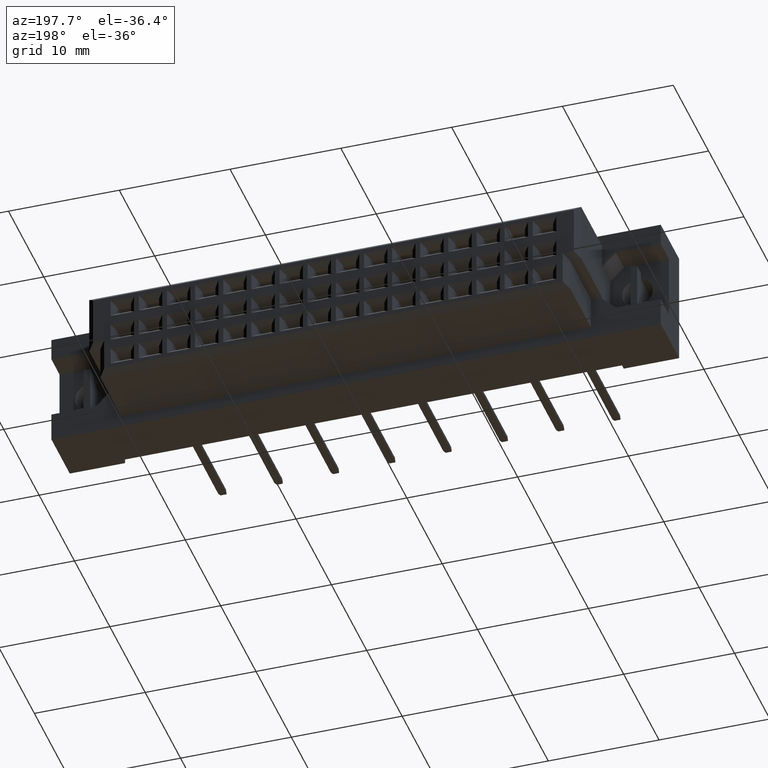
[diagram: clean part render]
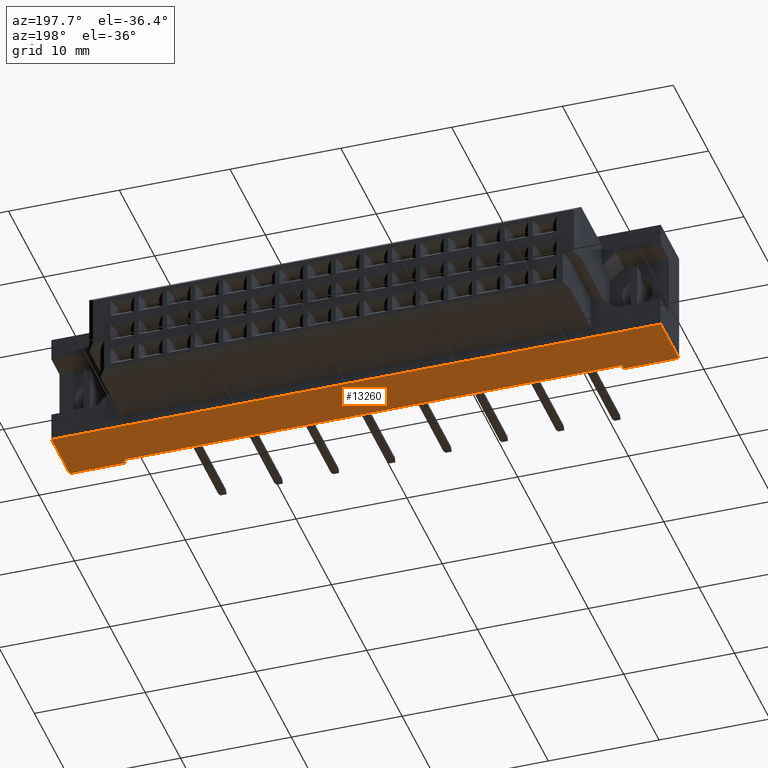
[diagram: same view with one face highlighted and labeled with its STEP entity id]
A machine part, auxiliary view. The second image highlights one B-rep face of the part: STEP entity #13260.
In plain terms, the highlighted planar face has unit normal (0, 0, -1).
Its self-contained STEP definition (entity closure, byte-faithful):
#394 = VECTOR ( 'NONE', #17163, 1000.000000000000000 ) ;
#1251 = DIRECTION ( 'NONE',  ( 0.0000000000000000000, 1.000000000000000000, 0.0000000000000000000 ) ) ;
#2326 = CARTESIAN_POINT ( 'NONE',  ( 27.49999999999999645, -6.400000000000001243, -5.299999999999999822 ) ) ;
#3092 = CARTESIAN_POINT ( 'NONE',  ( -22.50000000000001421, -11.09999999999999787, -5.300000000000000711 ) ) ;
#3165 = ORIENTED_EDGE ( 'NONE', *, *, #6632, .F. ) ;
#3377 = EDGE_LOOP ( 'NONE', ( #19708, #10181, #16246, #4997, #9344, #15163, #3165, #20218 ) ) ;
#3911 = EDGE_CURVE ( 'NONE', #18503, #15254, #20028, .T. ) ;
#4695 = LINE ( 'NONE', #20403, #15784 ) ;
#4967 = VERTEX_POINT ( 'NONE', #3092 ) ;
#4977 = VERTEX_POINT ( 'NONE', #17841 ) ;
#4997 = ORIENTED_EDGE ( 'NONE', *, *, #17103, .T. ) ;
#5142 = DIRECTION ( 'NONE',  ( -0.0000000000000000000, -1.000000000000000000, -6.123031769111886291E-17 ) ) ;
#5208 = EDGE_CURVE ( 'NONE', #4977, #7945, #6290, .T. ) ;
#5267 = CARTESIAN_POINT ( 'NONE',  ( -27.50000000000000355, -11.59999999999999964, -5.299999999999999822 ) ) ;
#5876 = AXIS2_PLACEMENT_3D ( 'NONE', #12530, #15371, #20184 ) ;
#6202 = DIRECTION ( 'NONE',  ( 1.000000000000000000, -0.0000000000000000000, -0.0000000000000000000 ) ) ;
#6290 = LINE ( 'NONE', #18871, #8194 ) ;
#6632 = EDGE_CURVE ( 'NONE', #4977, #18503, #16950, .T. ) ;
#7715 = CARTESIAN_POINT ( 'NONE',  ( -22.50000000000001421, -11.09999999999999787, -5.300000000000000711 ) ) ;
#7945 = VERTEX_POINT ( 'NONE', #12843 ) ;
#8194 = VECTOR ( 'NONE', #12375, 1000.000000000000000 ) ;
#8826 = DIRECTION ( 'NONE',  ( -1.000000000000000000, 0.0000000000000000000, 0.0000000000000000000 ) ) ;
#8976 = PLANE ( 'NONE',  #5876 ) ;
#9344 = ORIENTED_EDGE ( 'NONE', *, *, #18015, .T. ) ;
#9442 = LINE ( 'NONE', #19493, #11212 ) ;
#10181 = ORIENTED_EDGE ( 'NONE', *, *, #15506, .F. ) ;
#10719 = CARTESIAN_POINT ( 'NONE',  ( 22.50000000000001421, -11.09999999999999787, -5.300000000000000711 ) ) ;
#11212 = VECTOR ( 'NONE', #16043, 1000.000000000000000 ) ;
#11456 = VERTEX_POINT ( 'NONE', #15192 ) ;
#11574 = CARTESIAN_POINT ( 'NONE',  ( -27.50000000000000355, -6.400000000000001243, -5.299999999999999822 ) ) ;
#12075 = VECTOR ( 'NONE', #20290, 1000.000000000000000 ) ;
#12375 = DIRECTION ( 'NONE',  ( -1.000000000000000000, -0.0000000000000000000, -0.0000000000000000000 ) ) ;
#12509 = VECTOR ( 'NONE', #6202, 1000.000000000000000 ) ;
#12514 = EDGE_CURVE ( 'NONE', #18017, #7945, #19286, .T. ) ;
#12530 = CARTESIAN_POINT ( 'NONE',  ( -27.50000000000000355, -11.59999999999999964, -5.299999999999999822 ) ) ;
#12557 = VECTOR ( 'NONE', #5142, 1000.000000000000000 ) ;
#12725 = CARTESIAN_POINT ( 'NONE',  ( 27.49999999999999645, -6.400000000000001243, -5.299999999999999822 ) ) ;
#12843 = CARTESIAN_POINT ( 'NONE',  ( 22.50000000000001421, -11.59999999999999964, -5.300000000000000711 ) ) ;
#13260 = ADVANCED_FACE ( 'NONE', ( #20487 ), #8976, .T. ) ;
#13904 = CARTESIAN_POINT ( 'NONE',  ( 27.49999999999999645, -11.59999999999999964, -5.299999999999999822 ) ) ;
#14566 = EDGE_CURVE ( 'NONE', #4967, #11456, #18728, .T. ) ;
#15163 = ORIENTED_EDGE ( 'NONE', *, *, #3911, .F. ) ;
#15192 = CARTESIAN_POINT ( 'NONE',  ( -22.50000000000001421, -11.59999999999999964, -5.300000000000000711 ) ) ;
#15254 = VERTEX_POINT ( 'NONE', #11574 ) ;
#15371 = DIRECTION ( 'NONE',  ( 0.0000000000000000000, 0.0000000000000000000, -1.000000000000000000 ) ) ;
#15506 = EDGE_CURVE ( 'NONE', #4967, #18017, #15651, .T. ) ;
#15607 = CARTESIAN_POINT ( 'NONE',  ( 22.50000000000001421, -11.09999999999999787, -5.300000000000000711 ) ) ;
#15651 = LINE ( 'NONE', #10719, #12509 ) ;
#15784 = VECTOR ( 'NONE', #1251, 1000.000000000000000 ) ;
#15813 = VERTEX_POINT ( 'NONE', #5267 ) ;
#15939 = CARTESIAN_POINT ( 'NONE',  ( 22.50000000000001421, -11.09999999999999787, -5.300000000000000711 ) ) ;
#16043 = DIRECTION ( 'NONE',  ( -1.000000000000000000, -0.0000000000000000000, -0.0000000000000000000 ) ) ;
#16246 = ORIENTED_EDGE ( 'NONE', *, *, #14566, .T. ) ;
#16950 = LINE ( 'NONE', #13904, #12075 ) ;
#17103 = EDGE_CURVE ( 'NONE', #11456, #15813, #9442, .T. ) ;
#17163 = DIRECTION ( 'NONE',  ( -0.0000000000000000000, -1.000000000000000000, -6.123031769111886291E-17 ) ) ;
#17841 = CARTESIAN_POINT ( 'NONE',  ( 27.49999999999999645, -11.59999999999999964, -5.299999999999999822 ) ) ;
#18015 = EDGE_CURVE ( 'NONE', #15813, #15254, #4695, .T. ) ;
#18017 = VERTEX_POINT ( 'NONE', #15607 ) ;
#18503 = VERTEX_POINT ( 'NONE', #12725 ) ;
#18691 = VECTOR ( 'NONE', #8826, 1000.000000000000000 ) ;
#18728 = LINE ( 'NONE', #7715, #394 ) ;
#18871 = CARTESIAN_POINT ( 'NONE',  ( -27.50000000000000355, -11.59999999999999964, -5.299999999999999822 ) ) ;
#19286 = LINE ( 'NONE', #15939, #12557 ) ;
#19493 = CARTESIAN_POINT ( 'NONE',  ( -27.50000000000000355, -11.59999999999999964, -5.299999999999999822 ) ) ;
#19708 = ORIENTED_EDGE ( 'NONE', *, *, #12514, .F. ) ;
#20028 = LINE ( 'NONE', #2326, #18691 ) ;
#20184 = DIRECTION ( 'NONE',  ( -1.000000000000000000, 0.0000000000000000000, -0.0000000000000000000 ) ) ;
#20218 = ORIENTED_EDGE ( 'NONE', *, *, #5208, .T. ) ;
#20290 = DIRECTION ( 'NONE',  ( 0.0000000000000000000, 1.000000000000000000, 0.0000000000000000000 ) ) ;
#20403 = CARTESIAN_POINT ( 'NONE',  ( -27.50000000000000355, -11.59999999999999964, -5.299999999999999822 ) ) ;
#20487 = FACE_OUTER_BOUND ( 'NONE', #3377, .T. ) ;